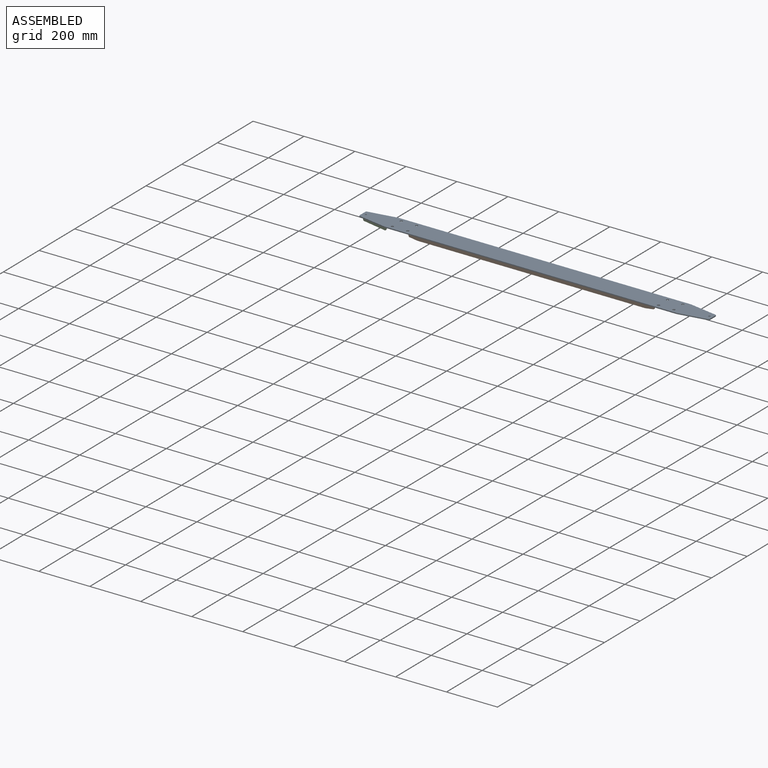
[diagram: assembled view]
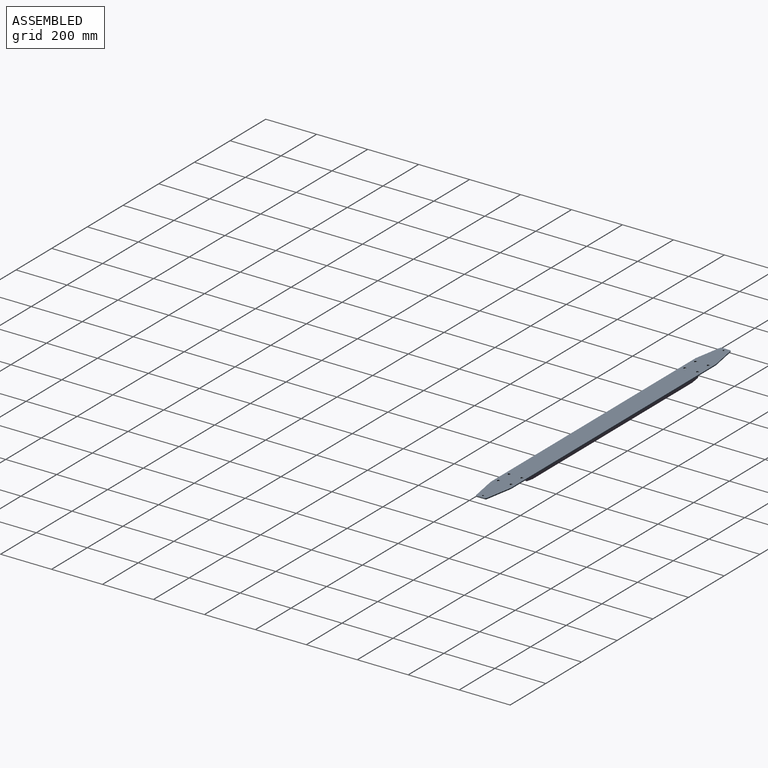
[diagram: assembled view, second angle]
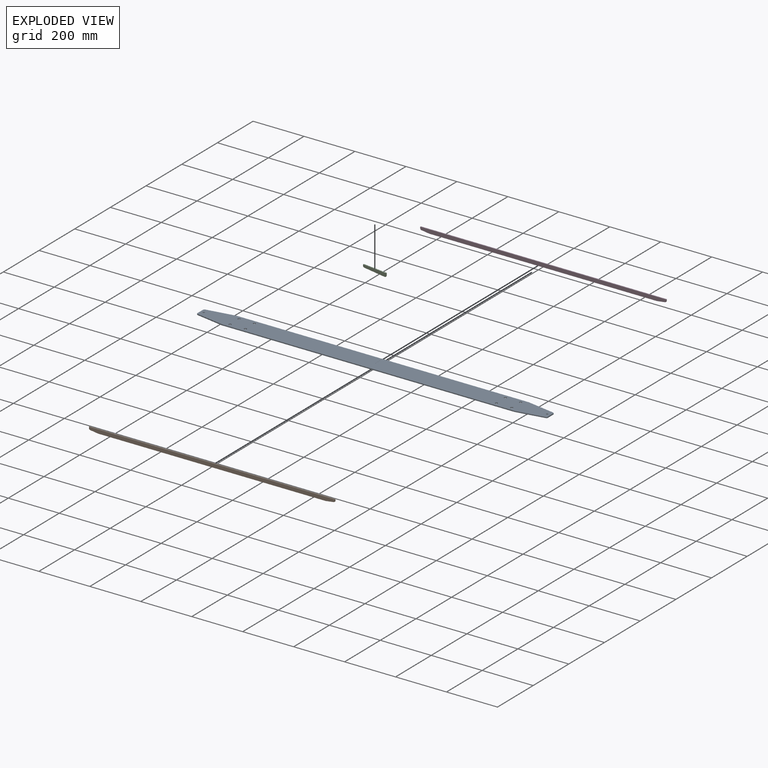
[diagram: exploded view]
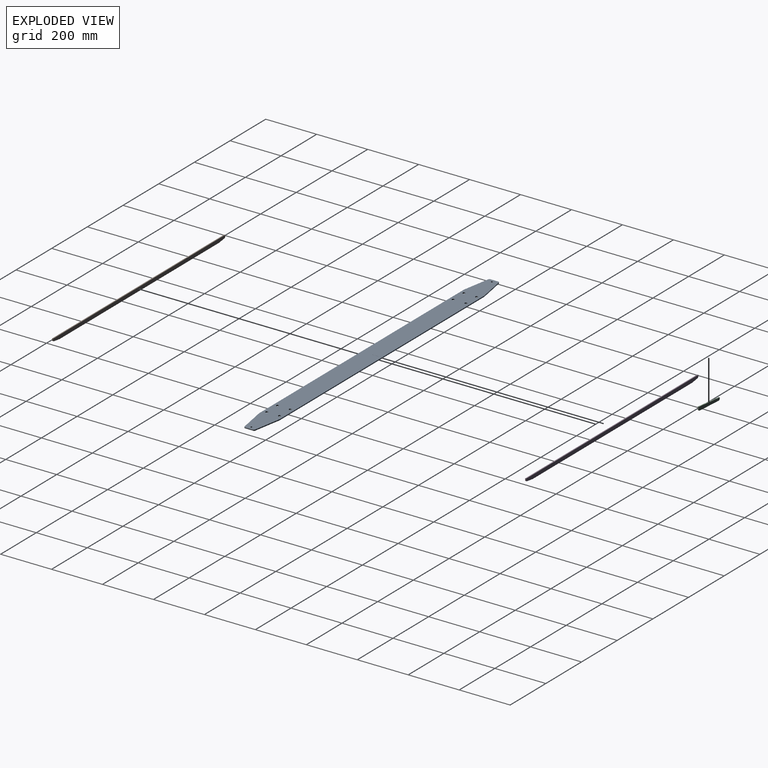
[diagram: exploded view, second angle]
ASSEMBLY  parts=4 mates=4
PART A: 28 faces, bbox 1375x80x4 mm
  f0: plane 1147.27x4mm, normal (0,-1,0), area 4589.1mm2, adj f1,f25,f26,f27
  f1: cylinder r=5mm len=4mm, axis (0,0,-1), area 3.5mm2, adj f0,f2,f26,f27
  f2: plane 108.86x19.2mm, normal (0.17,-0.98,0), area 442.2mm2, adj f1,f3,f26,f27
  f3: cylinder r=5mm len=4.92mm, axis (0,0,-1), area 27.9mm2, adj f2,f4,f26,f27
  f4: plane 31.61x4mm, normal (1,0,0), area 126.4mm2, adj f3,f5,f26,f27
  f5: cylinder r=5mm len=4.92mm, axis (0,0,-1), area 27.9mm2, adj f4,f6,f26,f27
  f6: plane 108.86x19.2mm, normal (0.17,0.98,0), area 442.2mm2, adj f5,f7,f26,f27
  f7: cylinder r=5mm len=4mm, axis (0,0,-1), area 3.5mm2, adj f6,f8,f26,f27
  f8: plane 1147.27x4mm, normal (0,1,0), area 4589.1mm2, adj f7,f9,f26,f27
  f9: cylinder r=5mm len=4mm, axis (0,0,-1), area 3.5mm2, adj f8,f10,f26,f27
  f10: plane 108.86x19.2mm, normal (-0.17,0.98,0), area 442.2mm2, adj f9,f11,f26,f27
  f11: cylinder r=5mm len=4.92mm, axis (0,0,-1), area 27.9mm2, adj f10,f12,f26,f27
  f12: plane 31.61x4mm, normal (-1,0,0), area 126.4mm2, adj f11,f13,f26,f27
  f13: cylinder r=5mm len=4.92mm, axis (0,0,-1), area 27.9mm2, adj f12,f14,f26,f27
  f14: plane 108.86x19.2mm, normal (-0.17,-0.98,0), area 442.2mm2, adj f13,f25,f26,f27
  f15: cylinder r=5mm len=10mm, axis (0,0,-1), area 125.7mm2, adj f26,f27
  f16: cylinder r=5mm len=10mm, axis (0,0,-1), area 125.7mm2, adj f26,f27
  f17: cylinder r=5mm len=10mm, axis (0,0,-1), area 125.7mm2, adj f26,f27
  f18: cylinder r=5mm len=10mm, axis (0,0,-1), area 125.7mm2, adj f26,f27
  f19: cylinder r=5mm len=10mm, axis (0,0,-1), area 125.7mm2, adj f26,f27
  f20: cylinder r=5mm len=10mm, axis (0,0,-1), area 125.7mm2, adj f26,f27
  f21: cylinder r=5mm len=10mm, axis (0,0,-1), area 125.7mm2, adj f26,f27
  f22: cylinder r=5mm len=10mm, axis (0,0,-1), area 125.7mm2, adj f26,f27
  f23: cylinder r=3.5mm len=7mm, axis (0,0,-1), area 88mm2, adj f26,f27
  f24: cylinder r=3.5mm len=7mm, axis (0,0,-1), area 88mm2, adj f26,f27
  f25: cylinder r=5mm len=4mm, axis (0,0,-1), area 3.5mm2, adj f0,f14,f26,f27
  f26: plane 1375x80mm, normal (0,0,1), area 104743.6mm2, adj f0,f1,f2,f3,f4,f5,f6,f7
  f27: plane 1375x80mm, normal (0,0,-1), area 104743.6mm2, adj f0,f1,f2,f3,f4,f5,f6,f7
PART B: 10 faces, bbox 965x15x4 mm
  f0: plane 31.27x4.4mm, normal (0.14,-0.99,0), area 126.3mm2, adj f1,f7,f8,f9
  f1: cylinder r=5mm len=4.95mm, axis (0,0,-1), area 28.6mm2, adj f0,f2,f8,f9
  f2: plane 5.65x4mm, normal (1,0,0), area 22.6mm2, adj f1,f3,f8,f9
  f3: plane 965x4mm, normal (0,1,0), area 3860mm2, adj f2,f4,f8,f9
  f4: plane 5.65x4mm, normal (-1,0,0), area 22.6mm2, adj f3,f5,f8,f9
  f5: cylinder r=5mm len=4.95mm, axis (0,0,-1), area 28.6mm2, adj f4,f6,f8,f9
  f6: plane 31.27x4.4mm, normal (-0.14,-0.99,0), area 126.3mm2, adj f5,f7,f8,f9
  f7: plane 893.85x4mm, normal (0,-1,0), area 3575.4mm2, adj f0,f6,f8,f9
  f8: plane 965x15mm, normal (0,0,1), area 14289.4mm2, adj f0,f1,f2,f3,f4,f5,f6,f7
  f9: plane 965x15mm, normal (0,0,-1), area 14289.4mm2, adj f0,f1,f2,f3,f4,f5,f6,f7
PART C: 8 faces, bbox 100.2x14.7x4 mm
  f0: cylinder r=5mm len=5.22mm, axis (0,0,-1), area 31.3mm2, adj f1,f5,f6,f7
  f1: plane 5.02x4mm, normal (-1,-0.05,0), area 20.1mm2, adj f0,f2,f6,f7
  f2: plane 100x4mm, normal (0,-1,0), area 400mm2, adj f1,f3,f6,f7
  f3: plane 9.97x4mm, normal (1,0.05,0), area 39.9mm2, adj f2,f4,f6,f7
  f4: cylinder r=5mm len=5.25mm, axis (0,0,-1), area 31.5mm2, adj f3,f5,f6,f7
  f5: plane 89.79x4.5mm, normal (-0.05,1,0), area 359.6mm2, adj f0,f4,f6,f7
  f6: plane 100.23x14.74mm, normal (0,0,1), area 1238mm2, adj f0,f1,f2,f3,f4,f5
  f7: plane 100.23x14.74mm, normal (0,0,-1), area 1238mm2, adj f0,f1,f2,f3,f4,f5
PART D: same geometry as B
PLACE A t=(30.29,66.78,-4.26)mm fixed
PLACE B rot(axis=(1,0,0),90deg) t=(110.29,35.78,-11.76)mm
PLACE C rot(axis=(-1,0.07,-0.07),90.3deg) t=(-592.91,42.31,-11.75)mm
PLACE D rot(axis=(1,0,0),90deg) t=(110.29,101.78,-11.76)mm fixed
MATE planar C.f2 <-> A.f27  axis (0,0,1) through (-592.3,44.25,-4.26)mm
MATE parallel B.f8 <-> A.f0  axis (0,-1,0) through (30.29,31.78,-4.26)mm
MATE parallel B.f8 <-> A.f0  axis (0,-1,0) through (30.29,31.78,-4.26)mm
MATE parallel D.f9 <-> A.f8  axis (0,1,0) through (30.29,101.78,-4.26)mm
